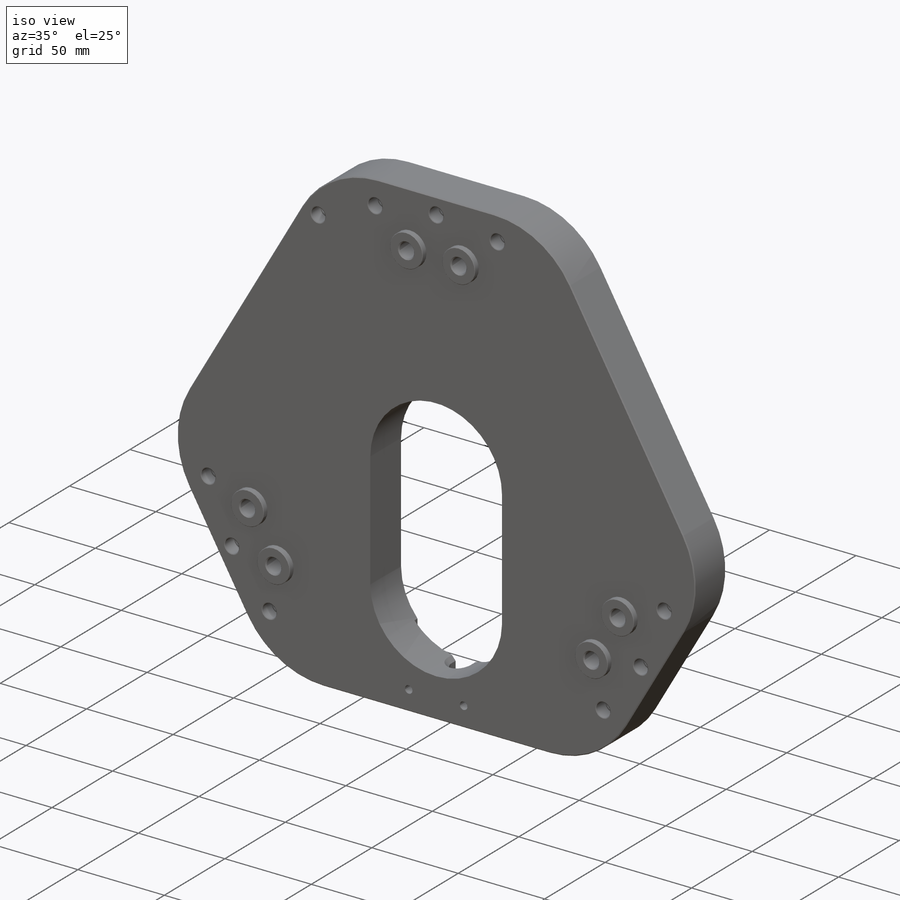
[diagram: iso view]
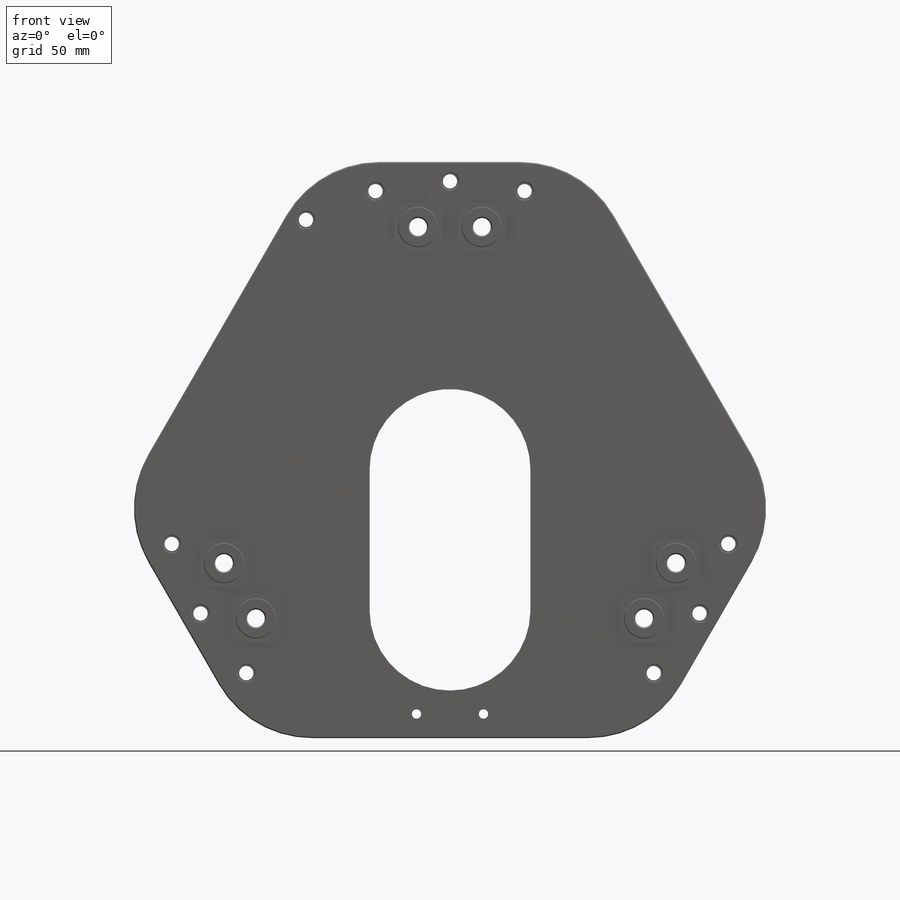
[diagram: front view]
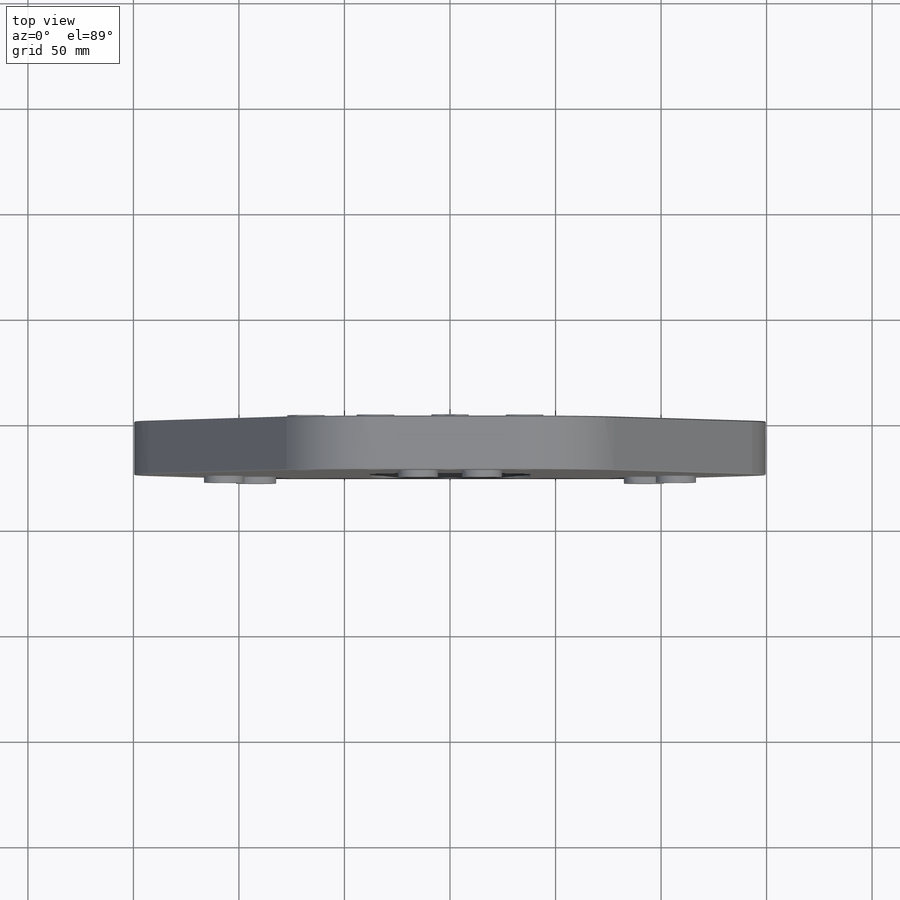
[diagram: top view]
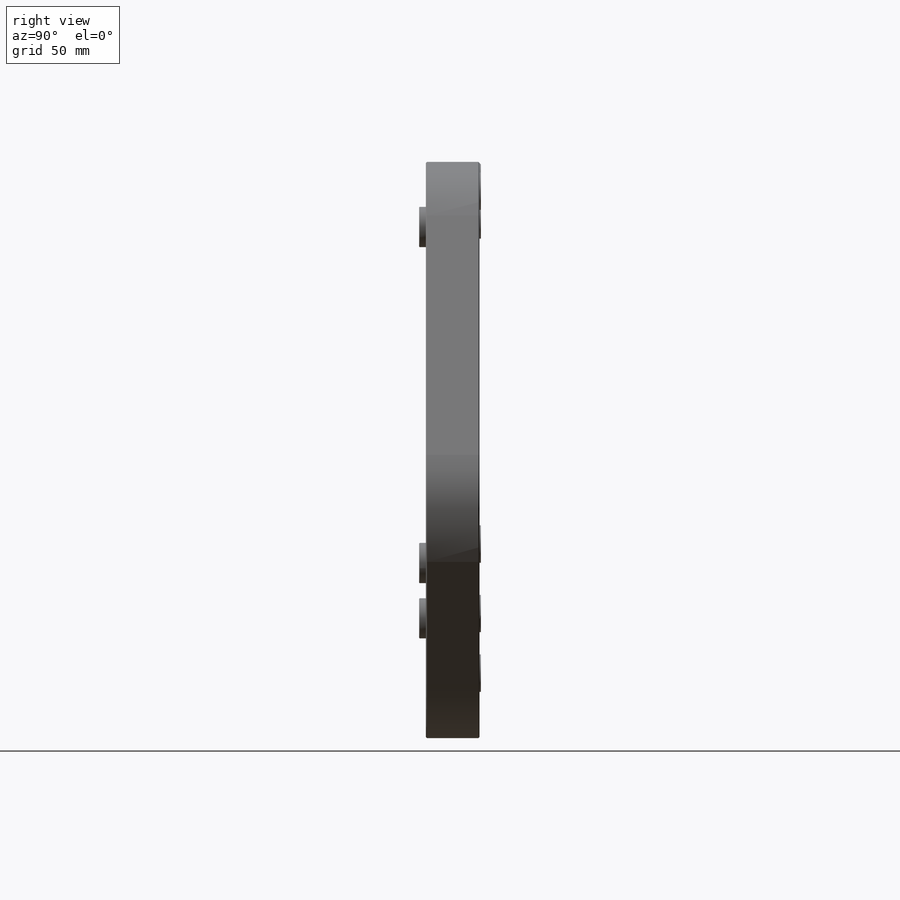
[diagram: right view]
SOLIDWORKS PART (.sldprt)
format: sldprt  version: not decoded by parser v0  size: 816,128 bytes
history: native  units: mm
features: sketch x17, cut_extrude x4, hole x4, extrude x3, pattern_circular x3, chamfer x2, material x1, fillet x1, sweep x1 (+14 scaffold rows collapsed)
feature tree (50):
  scaffold x14  (default folders/planes/origin — collapsed)
  material  "6061-T6 Al"
  sketch  "Sketch1"  dims[D1=273.05mm D2=125.73mm]
  extrude  "Extrude1"  Depth=28.575mm
  fillet  "Fillet1"  Radius=50.8mm
  sketch  "Sketch5"  dims[c1.D1=69.85mm c1.D3=66.675mm c2.D1=38.1mm c2.D2=38.1mm]
  cut_extrude  "Cut-center recess"  [1 undecoded]
  sketch  "Sketch10"  dims[c1.D1=17.78mm c1.D2=273.05mm c1.D3=136.525mm c2.D3=15.0deg]
  extrude  "Extrude2"  Depth=0.635mm
  sketch  "Sketch22"  dims[c1.D1=~131.873023mm c2.D1=15.0deg]
  extrude  "Extrude3"  [1 undecoded]
  sketch  "Sketch17"  dims[c1.D1=212.725mm c1.D2=250.825mm c2.D1=19.05mm c2.D2=19.05mm c2.D3=231.775mm c3.D2=~11.212654mm c3.D4=~90.252223mm c4.D4=7.5deg c4.D5=~90.252223mm c5.D5=120.0deg c5.D6=~76.836723mm c6.D6=7.5deg c6.D7=~48.733332mm c7.D7=120.0deg c7.D8=~87.582392mm c8.D8=7.5deg]
  cut_extrude  "Cut-bosses for GS-13 attachment"  Depth=3.175mm
  hole  "Tapped Hole for 1/4-20 Helicoil1"  Diameter=6.7564mm Depth=26.035mm
  sketch  "Sketch9"  dims[c1.D1=273.05mm c1.D2=~182.865479mm c2.D2=22.5deg c2.D3=~126.132653mm c3.D3=135.0deg c3.D2=~126.132653mm c4.D2=30.0deg]
  sketch  "Sketch8"  dims[hole-wizard template sketch: 42 standard entries collapsed; hole parameters kept: c12.Thru Tap Drill Depth=26.035mm c12.Thread Major Dia.=~8.09498mm c12.Thread Depth=7.62mm c12.Near C'Sink Dia.=8.89mm c12.D6=~4.399409mm c12.Near C'Sink Angle=120.0deg c12.Far C'Sink Dia.=8.128mm c12.D8=~2.963249mm c12.Far C'Sink Angle=82.0deg]
  pattern_circular  "CirPattern4"  Count=3 Angle=360deg
  hole  "Tapped Hole for 1/4-20 Helicoil2"  Diameter=6.7564mm Depth=26.035mm
  sketch  "Sketch24"
  sketch  "Sketch23"  dims[hole-wizard template sketch: 42 standard entries collapsed; hole parameters kept: c12.Thru Tap Drill Depth=26.035mm c12.Thread Major Dia.=~8.09498mm c12.Thread Depth=7.62mm c12.Near C'Sink Dia.=8.89mm c12.D6=~4.399409mm c12.Near C'Sink Angle=120.0deg c12.Far C'Sink Dia.=8.128mm c12.D8=~2.963249mm c12.Far C'Sink Angle=82.0deg]
  hole  "CBORE for 5/16 Socket Head Cap Screw1"  Diameter=8.4328mm Depth=28.575mm
  sketch  "Sketch12"  dims[c1.D1=231.8512mm c1.D2=~167.327323mm c2.D2=7.5deg]
  sketch  "Sketch11"  dims[hole-wizard template sketch: 41 standard entries collapsed; hole parameters kept: c12.Thru Hole Dia.=8.4328mm c12.Thru Hole Depth=28.575mm c12.C'Bore Dia.=~15.08125mm c12.C'Bore Depth=8.89mm c12.Far C'Sink Dia.=9.652mm c12.D6=~2.963249mm c12.Far C'Sink Angle=82.0deg]
  pattern_circular  "CirPattern5"  Count=2 Angle=15deg
  pattern_circular  "CirPattern6"  Count=3 Angle=360deg
  sketch  "Sketch18"  dims[D1=6.35mm D2=9.525mm]
  cut_extrude  "Cut-Extrude5"  [1 undecoded]
  sketch  "Sketch19"  dims[D1=57.15mm D2=38.1mm]
  cut_extrude  "Cut-Extrude6"  Depth=2.54mm
  hole  "Tapped Hole for #8-32 Helicoil1"  Diameter=4.3942mm Depth=22.86mm
  sketch  "Sketch21"  dims[D1=31.75mm]
  sketch  "Sketch20"  dims[hole-wizard template sketch: 42 standard entries collapsed; hole parameters kept: c12.Thru Tap Drill Depth=22.86mm c12.Thread Major Dia.=~5.27558mm c12.Thread Depth=10.3632mm c12.Near C'Sink Dia.=7.62mm c12.D6=~4.399409mm c12.Near C'Sink Angle=82.0deg]
  chamfer  "Chamfer1"  Distance=0.254mm Angle=45deg
  chamfer  "Chamfer4"  Distance=2.54mm Angle=45deg
  sketch  "Sketch25"  dims[D1=0.0mm]
  sketch  "Sketch26"  dims[D1=0.508mm]
  sweep  "Cut-Sweep1"
decode coverage: 30 of 35 modeling features carry decoded parameters
note: ~ marks probable driven/reference dimensions
note: 3 parameter values undecoded
summary: no parameter record found for 3 features; Diameter pulled from absorbed wizard sketch
note: suppression state not decoded; provenance and decode notes live in map.json
